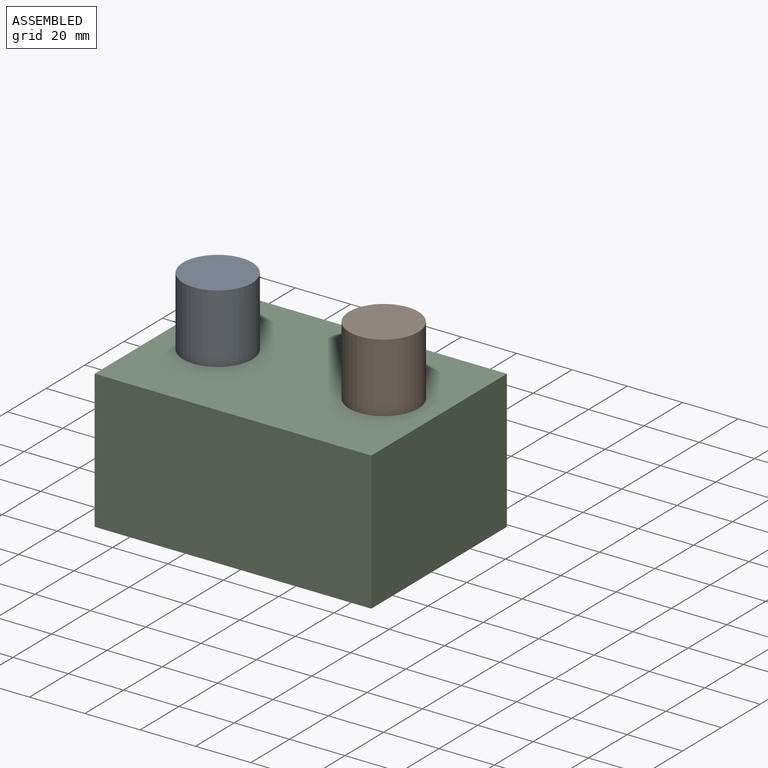
[diagram: assembled view]
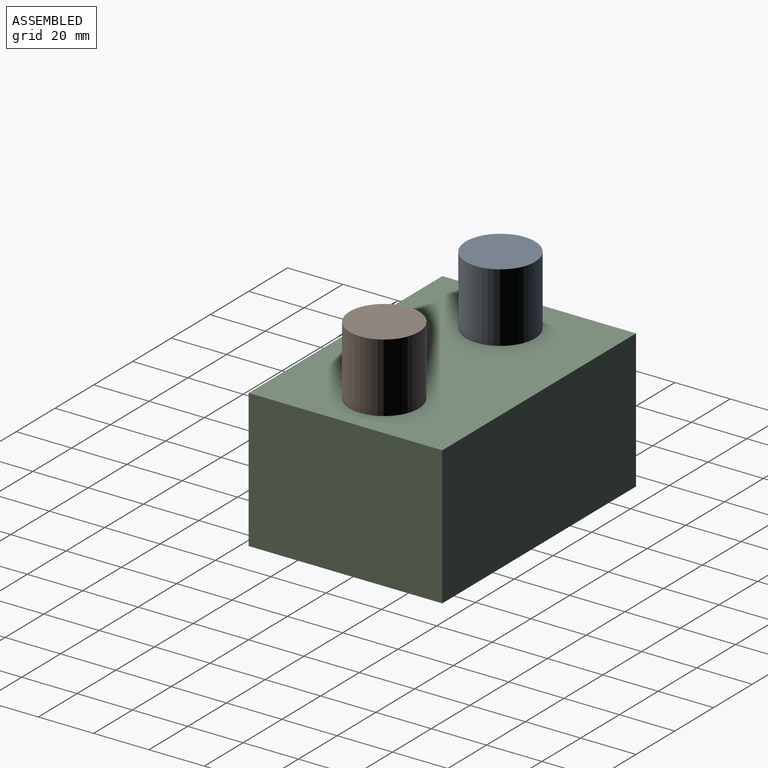
[diagram: assembled view, second angle]
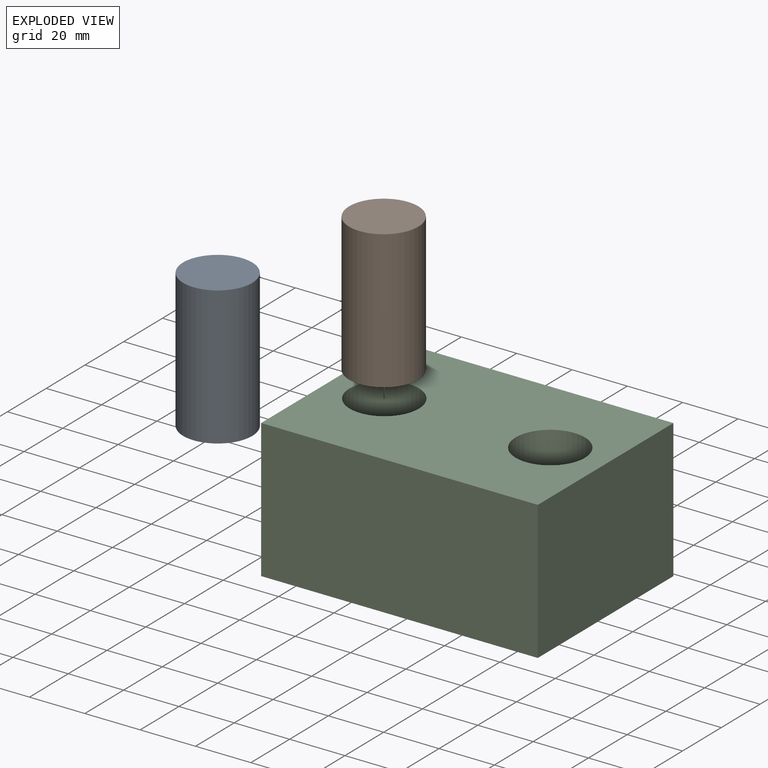
[diagram: exploded view]
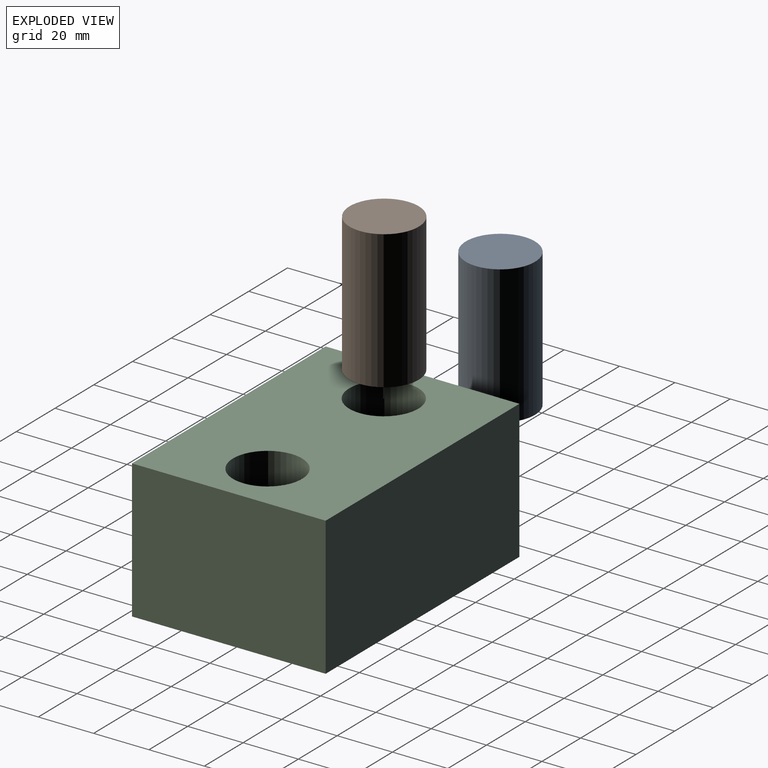
[diagram: exploded view, second angle]
ASSEMBLY  parts=3 mates=2
PART A: 3 faces, bbox 25x25x50 mm
  f0: cylinder r=12.5mm len=50mm, axis (0,0,-1), area 3927mm2, adj f1,f2
  f1: plane 25x25mm, normal (0,0,1), area 490.9mm2, adj f0
  f2: plane 25x25mm, normal (0,0,-1), area 490.9mm2, adj f0
PART B: 3 faces, bbox 25x25x50 mm
  f0: cylinder r=12.5mm len=50mm, axis (0,0,-1), area 3927mm2, adj f1,f2
  f1: plane 25x25mm, normal (0,0,1), area 490.9mm2, adj f0
  f2: plane 25x25mm, normal (0,0,-1), area 490.9mm2, adj f0
PART C: 10 faces, bbox 100x70x50 mm
  f0: plane 100x70mm, normal (0,0,1), area 6018.3mm2, adj f1,f2,f3,f4,f6,f8
  f1: plane 70x50mm, normal (1,0,0), area 3500mm2, adj f0,f2,f4,f5
  f2: plane 100x50mm, normal (0,1,0), area 5000mm2, adj f0,f1,f3,f5
  f3: plane 70x50mm, normal (-1,0,0), area 3500mm2, adj f0,f2,f4,f5
  f4: plane 100x50mm, normal (0,-1,0), area 5000mm2, adj f0,f1,f3,f5
  f5: plane 100x70mm, normal (0,0,-1), area 7000mm2, adj f1,f2,f3,f4
  f6: cylinder r=12.5mm len=25mm, axis (0,0,-1), area 1963.5mm2, adj f0,f7
  f7: plane 25x25mm, normal (0,0,1), area 490.9mm2, adj f6
  f8: cylinder r=12.5mm len=25mm, axis (0,0,-1), area 1963.5mm2, adj f0,f9
  f9: plane 25x25mm, normal (0,0,1), area 490.9mm2, adj f8
PLACE A at identity
PLACE B at identity
PLACE C at identity fixed
MATE slider C.f8 <-> A.f0  axis (0,0,1) through (-30,0,25)mm
MATE slider C.f6 <-> B.f0  axis (0,0,1) through (30,0,25)mm
